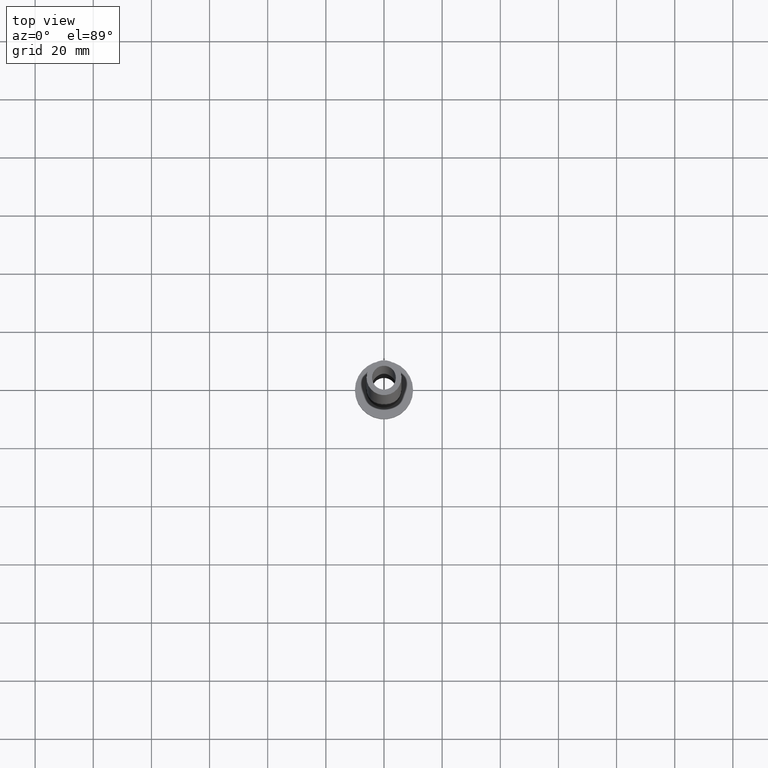
[diagram: clean part render]
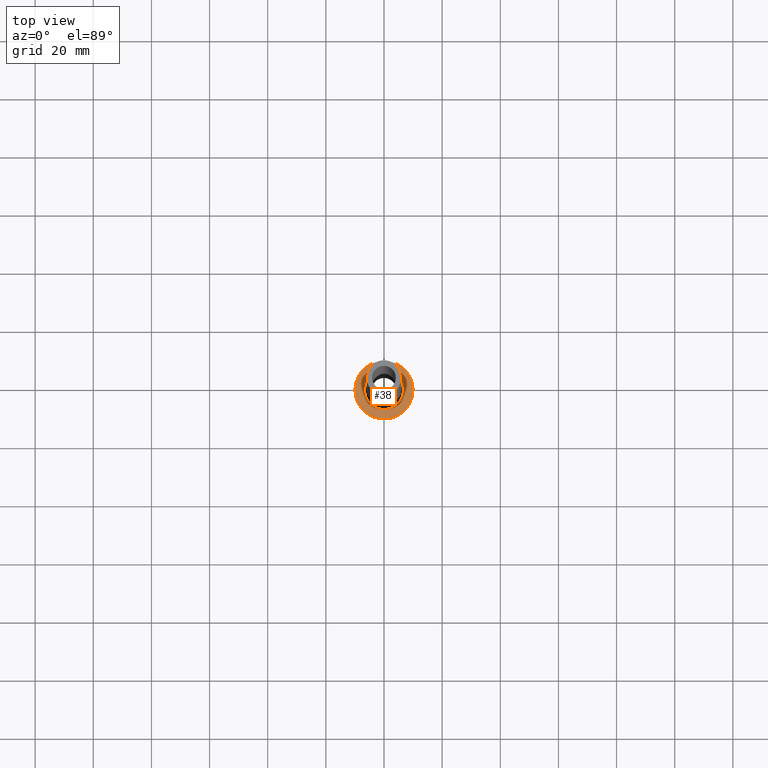
[diagram: same view with one face highlighted and labeled with its STEP entity id]
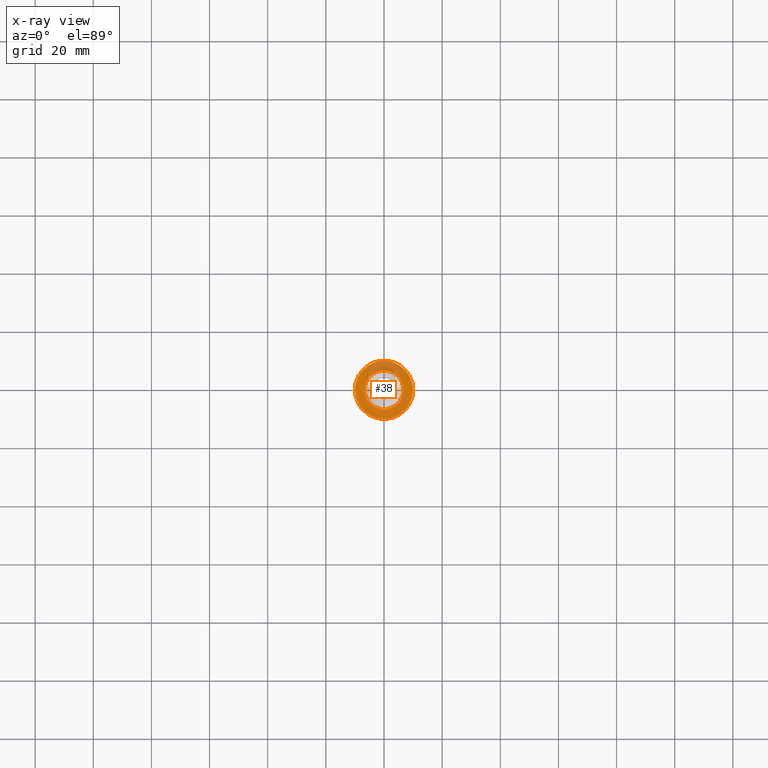
[diagram: x-ray of the same camera — body ghosted, the highlighted face saturated]
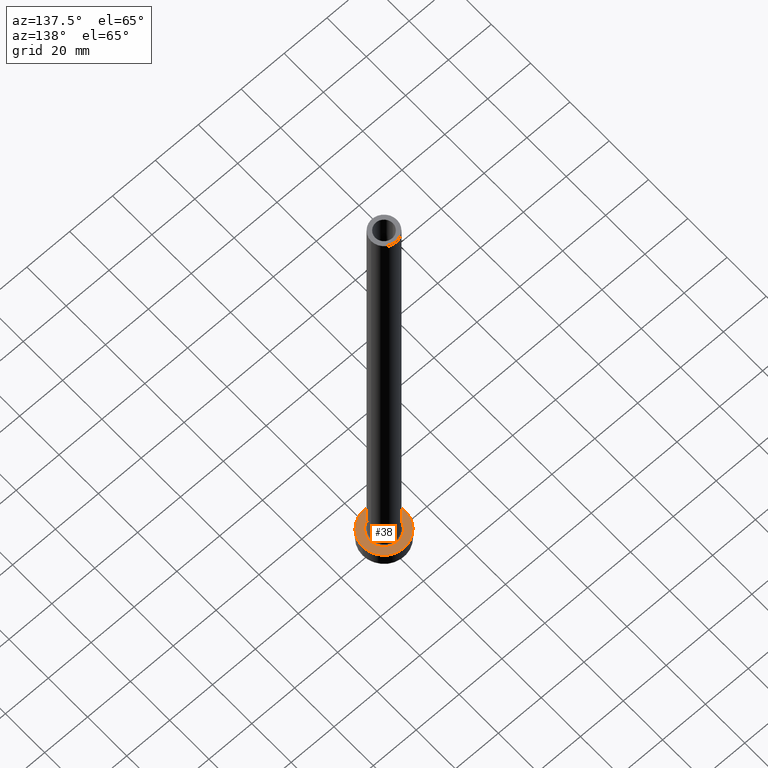
[diagram: same view with one face highlighted and labeled with its STEP entity id]
A machine part, top view. The second image highlights one B-rep face of the part: STEP entity #38.
The next image is the same camera in x-ray: the body ghosted, the highlighted face saturated — about 23% of this face is hidden behind the body in this view.
A second angle (auxiliary view) of the same face is appended — the face is thin or edge-on in the first view.
In plain terms, the highlighted planar face has unit normal (0, 0, 1).
Its self-contained STEP definition (entity closure, byte-faithful):
#6 = EDGE_LOOP ( 'NONE', ( #126, #346 ) ) ;
#7 = DIRECTION ( 'NONE',  ( 0.000000000000000000, 0.000000000000000000, 1.000000000000000000 ) ) ;
#11 = CARTESIAN_POINT ( 'NONE',  ( 0.000000000000000000, 0.000000000000000000, 7.000000000000000000 ) ) ;
#18 = VERTEX_POINT ( 'NONE', #174 ) ;
#26 = CARTESIAN_POINT ( 'NONE',  ( 0.000000000000000000, 0.000000000000000000, 7.000000000000000000 ) ) ;
#38 = ADVANCED_FACE ( 'NONE', ( #310, #170 ), #414, .T. ) ;
#72 = CIRCLE ( 'NONE', #401, 6.700000000000001066 ) ;
#75 = VERTEX_POINT ( 'NONE', #456 ) ;
#86 = VERTEX_POINT ( 'NONE', #284 ) ;
#90 = EDGE_CURVE ( 'NONE', #155, #75, #72, .T. ) ;
#91 = DIRECTION ( 'NONE',  ( 1.000000000000000000, 0.000000000000000000, 0.000000000000000000 ) ) ;
#97 = EDGE_LOOP ( 'NONE', ( #129, #239 ) ) ;
#108 = DIRECTION ( 'NONE',  ( 1.000000000000000000, 0.000000000000000000, 0.000000000000000000 ) ) ;
#126 = ORIENTED_EDGE ( 'NONE', *, *, #442, .T. ) ;
#129 = ORIENTED_EDGE ( 'NONE', *, *, #90, .T. ) ;
#136 = AXIS2_PLACEMENT_3D ( 'NONE', #416, #423, #395 ) ;
#137 = DIRECTION ( 'NONE',  ( -0.000000000000000000, -0.000000000000000000, -1.000000000000000000 ) ) ;
#147 = CIRCLE ( 'NONE', #184, 10.00000000000000000 ) ;
#155 = VERTEX_POINT ( 'NONE', #358 ) ;
#170 = FACE_OUTER_BOUND ( 'NONE', #6, .T. ) ;
#174 = CARTESIAN_POINT ( 'NONE',  ( -10.00000000000000000, 0.000000000000000000, 7.000000000000000000 ) ) ;
#184 = AXIS2_PLACEMENT_3D ( 'NONE', #11, #7, #192 ) ;
#192 = DIRECTION ( 'NONE',  ( 1.000000000000000000, 0.000000000000000000, 0.000000000000000000 ) ) ;
#212 = DIRECTION ( 'NONE',  ( 0.000000000000000000, 0.000000000000000000, 1.000000000000000000 ) ) ;
#232 = CIRCLE ( 'NONE', #263, 10.00000000000000000 ) ;
#239 = ORIENTED_EDGE ( 'NONE', *, *, #241, .T. ) ;
#241 = EDGE_CURVE ( 'NONE', #75, #155, #334, .T. ) ;
#254 = AXIS2_PLACEMENT_3D ( 'NONE', #297, #398, #289 ) ;
#263 = AXIS2_PLACEMENT_3D ( 'NONE', #431, #212, #108 ) ;
#284 = CARTESIAN_POINT ( 'NONE',  ( 10.00000000000000000, 1.224646799147353256E-15, 7.000000000000000000 ) ) ;
#289 = DIRECTION ( 'NONE',  ( 1.000000000000000000, 0.000000000000000000, 0.000000000000000000 ) ) ;
#297 = CARTESIAN_POINT ( 'NONE',  ( 0.000000000000000000, 0.000000000000000000, 7.000000000000000000 ) ) ;
#310 = FACE_BOUND ( 'NONE', #97, .T. ) ;
#334 = CIRCLE ( 'NONE', #254, 6.700000000000001066 ) ;
#346 = ORIENTED_EDGE ( 'NONE', *, *, #394, .T. ) ;
#358 = CARTESIAN_POINT ( 'NONE',  ( 6.700000000000001066, 0.000000000000000000, 7.000000000000006217 ) ) ;
#394 = EDGE_CURVE ( 'NONE', #86, #18, #232, .T. ) ;
#395 = DIRECTION ( 'NONE',  ( 1.000000000000000000, 0.000000000000000000, -0.000000000000000000 ) ) ;
#398 = DIRECTION ( 'NONE',  ( -0.000000000000000000, -0.000000000000000000, -1.000000000000000000 ) ) ;
#401 = AXIS2_PLACEMENT_3D ( 'NONE', #26, #137, #91 ) ;
#414 = PLANE ( 'NONE',  #136 ) ;
#416 = CARTESIAN_POINT ( 'NONE',  ( 0.000000000000000000, 0.000000000000000000, 7.000000000000000000 ) ) ;
#423 = DIRECTION ( 'NONE',  ( 0.000000000000000000, 0.000000000000000000, 1.000000000000000000 ) ) ;
#431 = CARTESIAN_POINT ( 'NONE',  ( 0.000000000000000000, 0.000000000000000000, 7.000000000000000000 ) ) ;
#442 = EDGE_CURVE ( 'NONE', #18, #86, #147, .T. ) ;
#456 = CARTESIAN_POINT ( 'NONE',  ( -6.700000000000001066, 8.205133554287267548E-16, 7.000000000000006217 ) ) ;